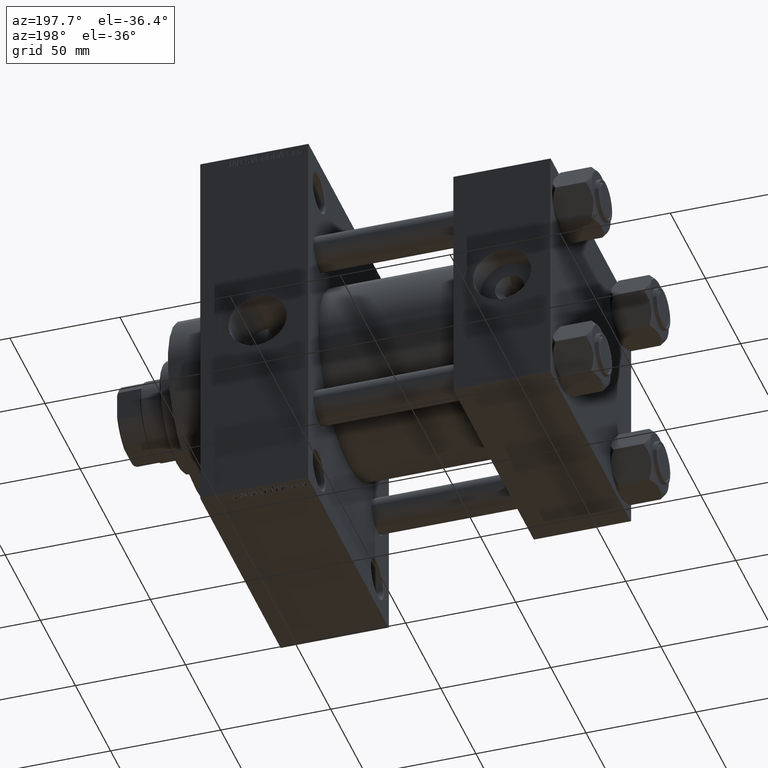
[diagram: clean part render]
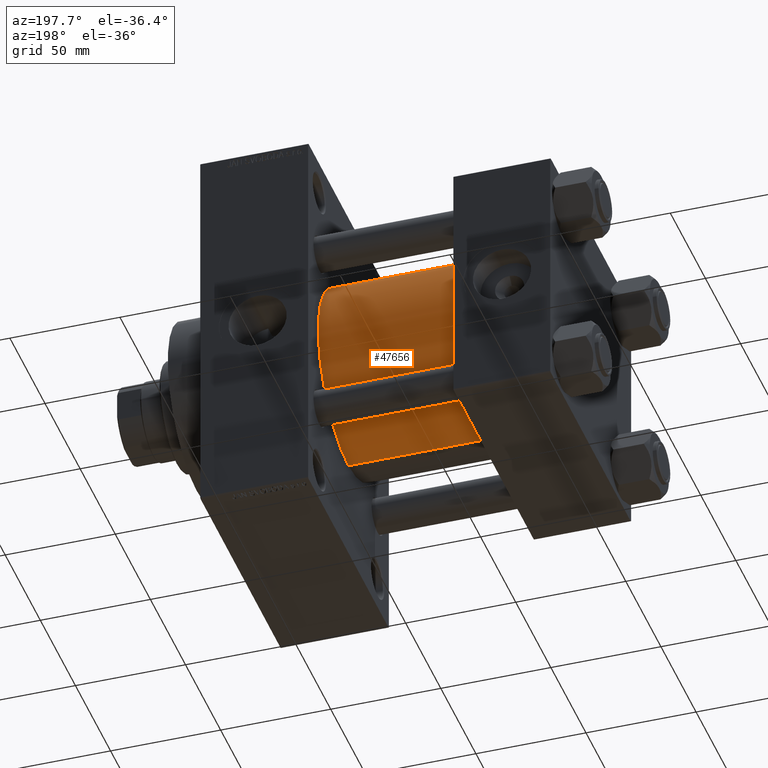
[diagram: same view with one face highlighted and labeled with its STEP entity id]
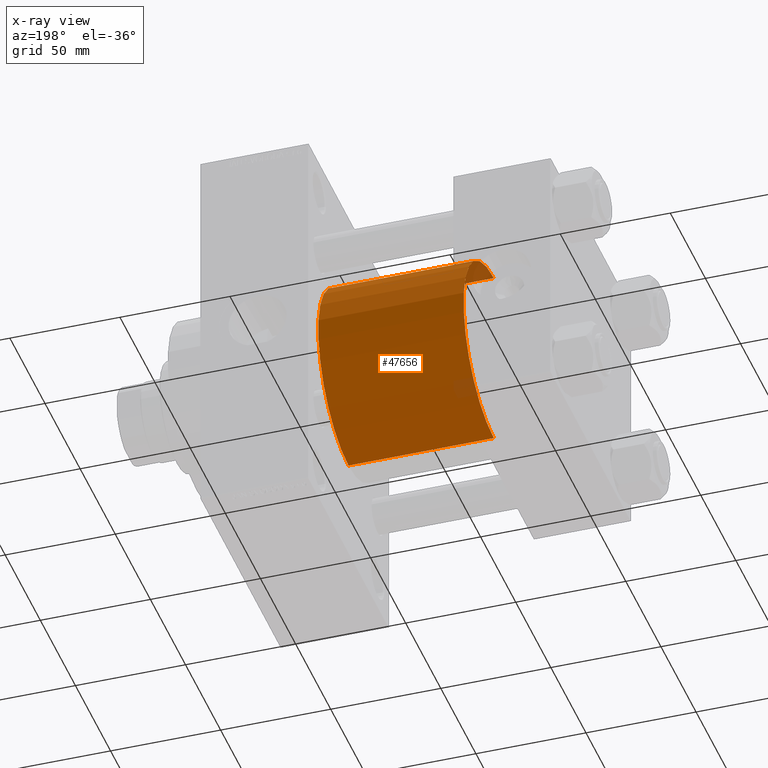
[diagram: x-ray of the same camera — body ghosted, the highlighted face saturated]
A machine part, auxiliary view. The second image highlights one B-rep face of the part: STEP entity #47656.
The next image is the same camera in x-ray: the body ghosted, the highlighted face saturated — about 3% of this face is hidden behind the body in this view.
In plain terms, the highlighted cylindrical surface (partial cylindrical patch) has radius 43 mm, axis along (-1, -0, -0).
Its self-contained STEP definition (entity closure, byte-faithful):
#605 = CIRCLE ( 'NONE', #28726, 43.00000000000000000 ) ;
#705 = AXIS2_PLACEMENT_3D ( 'NONE', #45976, #3942, #22325 ) ;
#1199 = ORIENTED_EDGE ( 'NONE', *, *, #38245, .T. ) ;
#2939 = CARTESIAN_POINT ( 'NONE',  ( 110.0000000000000000, 2.663896022368408223E-15, -43.00000000000000000 ) ) ;
#3942 = DIRECTION ( 'NONE',  ( 1.000000000000000000, -0.000000000000000000, 0.000000000000000000 ) ) ;
#5482 = ORIENTED_EDGE ( 'NONE', *, *, #32378, .F. ) ;
#7981 = CARTESIAN_POINT ( 'NONE',  ( 110.0000000000000000, -2.602085213965210642E-15, 43.00000000000000000 ) ) ;
#8038 = DIRECTION ( 'NONE',  ( 1.000000000000000000, 0.000000000000000000, 0.000000000000000000 ) ) ;
#8202 = CARTESIAN_POINT ( 'NONE',  ( 110.0000000000000000, -2.602085213965210642E-15, 43.00000000000000000 ) ) ;
#8535 = DIRECTION ( 'NONE',  ( 0.000000000000000000, 0.000000000000000000, -1.000000000000000000 ) ) ;
#9975 = ORIENTED_EDGE ( 'NONE', *, *, #17604, .F. ) ;
#10266 = ORIENTED_EDGE ( 'NONE', *, *, #23526, .T. ) ;
#11139 = CIRCLE ( 'NONE', #705, 43.00000000000000000 ) ;
#11631 = CARTESIAN_POINT ( 'NONE',  ( 44.00000000000000000, -2.602085213965210642E-15, 43.00000000000000000 ) ) ;
#12012 = EDGE_LOOP ( 'NONE', ( #5482, #10266, #1199, #9975 ) ) ;
#12173 = FACE_OUTER_BOUND ( 'NONE', #12012, .T. ) ;
#15952 = CARTESIAN_POINT ( 'NONE',  ( 110.0000000000000000, -2.602085213965210642E-15, 0.000000000000000000 ) ) ;
#17604 = EDGE_CURVE ( 'NONE', #27553, #47262, #27118, .T. ) ;
#19241 = DIRECTION ( 'NONE',  ( 0.000000000000000000, 0.000000000000000000, 1.000000000000000000 ) ) ;
#20067 = DIRECTION ( 'NONE',  ( -1.000000000000000000, -0.000000000000000000, -0.000000000000000000 ) ) ;
#22325 = DIRECTION ( 'NONE',  ( 0.000000000000000000, 0.000000000000000000, 1.000000000000000000 ) ) ;
#23526 = EDGE_CURVE ( 'NONE', #31520, #35803, #29885, .T. ) ;
#27118 = LINE ( 'NONE', #7981, #41996 ) ;
#27553 = VERTEX_POINT ( 'NONE', #8202 ) ;
#28726 = AXIS2_PLACEMENT_3D ( 'NONE', #43009, #8038, #8535 ) ;
#29885 = LINE ( 'NONE', #2939, #44608 ) ;
#31439 = CARTESIAN_POINT ( 'NONE',  ( 110.0000000000000000, 2.663896022368408223E-15, -43.00000000000000000 ) ) ;
#31520 = VERTEX_POINT ( 'NONE', #31439 ) ;
#32378 = EDGE_CURVE ( 'NONE', #31520, #27553, #605, .T. ) ;
#32912 = DIRECTION ( 'NONE',  ( -1.000000000000000000, -0.000000000000000000, -0.000000000000000000 ) ) ;
#35105 = CYLINDRICAL_SURFACE ( 'NONE', #36883, 43.00000000000000000 ) ;
#35803 = VERTEX_POINT ( 'NONE', #47683 ) ;
#36883 = AXIS2_PLACEMENT_3D ( 'NONE', #15952, #38374, #19241 ) ;
#38245 = EDGE_CURVE ( 'NONE', #35803, #47262, #11139, .T. ) ;
#38374 = DIRECTION ( 'NONE',  ( -1.000000000000000000, -0.000000000000000000, -0.000000000000000000 ) ) ;
#41996 = VECTOR ( 'NONE', #20067, 1000.000000000000000 ) ;
#43009 = CARTESIAN_POINT ( 'NONE',  ( 110.0000000000000000, -2.602085213965210642E-15, 0.000000000000000000 ) ) ;
#44608 = VECTOR ( 'NONE', #32912, 1000.000000000000000 ) ;
#45976 = CARTESIAN_POINT ( 'NONE',  ( 44.00000000000000000, -2.602085213965210642E-15, 0.000000000000000000 ) ) ;
#47262 = VERTEX_POINT ( 'NONE', #11631 ) ;
#47656 = ADVANCED_FACE ( 'NONE', ( #12173 ), #35105, .T. ) ;
#47683 = CARTESIAN_POINT ( 'NONE',  ( 44.00000000000000000, 2.663896022368408223E-15, -43.00000000000000000 ) ) ;